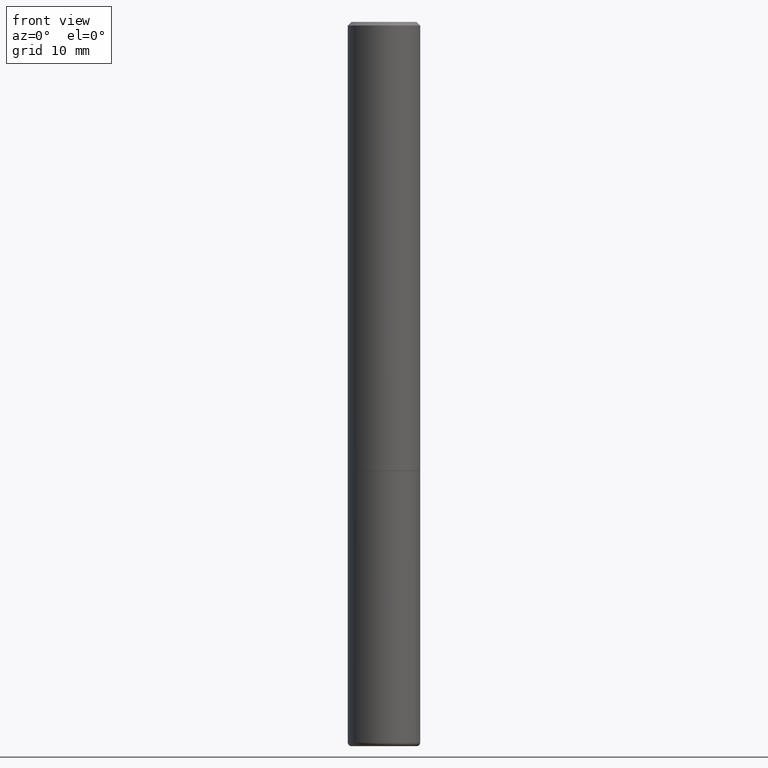
[diagram: clean part render]
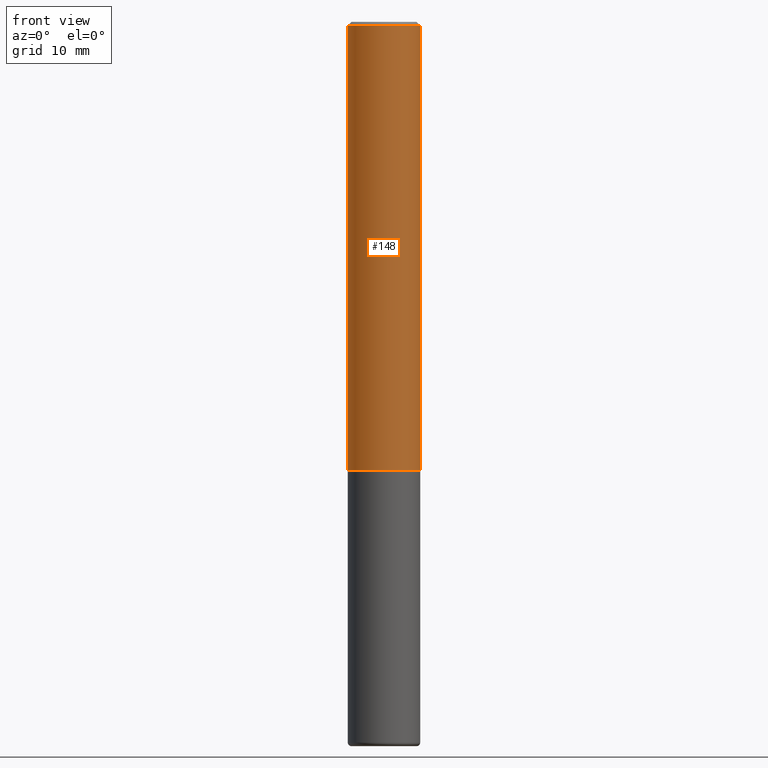
[diagram: same view with one face highlighted and labeled with its STEP entity id]
A machine part, front view. The second image highlights one B-rep face of the part: STEP entity #148.
In plain terms, the highlighted cylindrical surface (edge-blend (fillet) strip) has radius 5 mm, axis along (-0, 0, 1).
Its self-contained STEP definition (entity closure, byte-faithful):
#17 = CARTESIAN_POINT ( 'NONE',  ( -0.1968500000000001360, 1.398703375343758182E-15, -9.682923725166790684E-30 ) ) ;
#22 = DIRECTION ( 'NONE',  ( 1.000000000000000000, -6.982962677686266711E-15, 4.876176775795935793E-29 ) ) ;
#28 = CARTESIAN_POINT ( 'NONE',  ( 0.1968500000000000527, -1.420318657638189516E-15, -0.02000000000000004205 ) ) ;
#35 = CIRCLE ( 'NONE', #68, 0.1968500000000000527 ) ;
#37 = CARTESIAN_POINT ( 'NONE',  ( 0.1968500000000002470, -9.893461521745933144E-15, -2.439900000000000180 ) ) ;
#43 = VERTEX_POINT ( 'NONE', #48 ) ;
#48 = CARTESIAN_POINT ( 'NONE',  ( -0.1968500000000002470, -2.895644097366365685E-15, -2.439900000000000180 ) ) ;
#59 = EDGE_CURVE ( 'NONE', #140, #132, #35, .T. ) ;
#61 = CYLINDRICAL_SURFACE ( 'NONE', #92, 0.1968500000000001360 ) ;
#64 = DIRECTION ( 'NONE',  ( -2.445468806185136597E-29, 3.491481338843145583E-15, 1.000000000000000000 ) ) ;
#68 = AXIS2_PLACEMENT_3D ( 'NONE', #340, #411, #259 ) ;
#70 = EDGE_CURVE ( 'NONE', #43, #279, #160, .T. ) ;
#75 = ORIENTED_EDGE ( 'NONE', *, *, #70, .T. ) ;
#92 = AXIS2_PLACEMENT_3D ( 'NONE', #365, #64, #22 ) ;
#104 = LINE ( 'NONE', #17, #139 ) ;
#105 = EDGE_CURVE ( 'NONE', #279, #132, #410, .T. ) ;
#132 = VERTEX_POINT ( 'NONE', #28 ) ;
#136 = ORIENTED_EDGE ( 'NONE', *, *, #59, .F. ) ;
#139 = VECTOR ( 'NONE', #344, 39.37007874015748143 ) ;
#140 = VERTEX_POINT ( 'NONE', #244 ) ;
#148 = ADVANCED_FACE ( 'NONE', ( #361 ), #61, .T. ) ;
#149 = DIRECTION ( 'NONE',  ( -2.445468806185136597E-29, 3.491481338843145583E-15, 1.000000000000000000 ) ) ;
#159 = ORIENTED_EDGE ( 'NONE', *, *, #258, .F. ) ;
#160 = CIRCLE ( 'NONE', #286, 0.1968500000000002470 ) ;
#189 = CARTESIAN_POINT ( 'NONE',  ( 5.966699340211115678E-29, -8.518865318643391536E-15, -2.439900000000000180 ) ) ;
#202 = CARTESIAN_POINT ( 'NONE',  ( 0.1968500000000001360, -1.374596203102542594E-15, 9.598753983154306463E-30 ) ) ;
#239 = ORIENTED_EDGE ( 'NONE', *, *, #105, .T. ) ;
#244 = CARTESIAN_POINT ( 'NONE',  ( -0.1968500000000000527, 1.304766576325678902E-15, -0.02000000000000004205 ) ) ;
#258 = EDGE_CURVE ( 'NONE', #43, #140, #104, .T. ) ;
#259 = DIRECTION ( 'NONE',  ( 1.000000000000000000, -6.982962677686266711E-15, 0.000000000000000000 ) ) ;
#279 = VERTEX_POINT ( 'NONE', #37 ) ;
#286 = AXIS2_PLACEMENT_3D ( 'NONE', #189, #149, #296 ) ;
#296 = DIRECTION ( 'NONE',  ( 1.000000000000000000, -6.982962677686265133E-15, 0.000000000000000000 ) ) ;
#306 = EDGE_LOOP ( 'NONE', ( #159, #75, #239, #136 ) ) ;
#340 = CARTESIAN_POINT ( 'NONE',  ( 4.890937612370283668E-31, -6.982962677686305168E-17, -0.02000000000000004205 ) ) ;
#343 = DIRECTION ( 'NONE',  ( -2.445468806185136877E-29, 3.491481338843145188E-15, 1.000000000000000000 ) ) ;
#344 = DIRECTION ( 'NONE',  ( -2.445468806185136877E-29, 3.491481338843145188E-15, 1.000000000000000000 ) ) ;
#361 = FACE_OUTER_BOUND ( 'NONE', #306, .T. ) ;
#365 = CARTESIAN_POINT ( 'NONE',  ( 0.000000000000000000, 0.000000000000000000, 0.000000000000000000 ) ) ;
#375 = VECTOR ( 'NONE', #343, 39.37007874015748143 ) ;
#410 = LINE ( 'NONE', #202, #375 ) ;
#411 = DIRECTION ( 'NONE',  ( -2.445468806185136597E-29, 3.491481338843145583E-15, 1.000000000000000000 ) ) ;